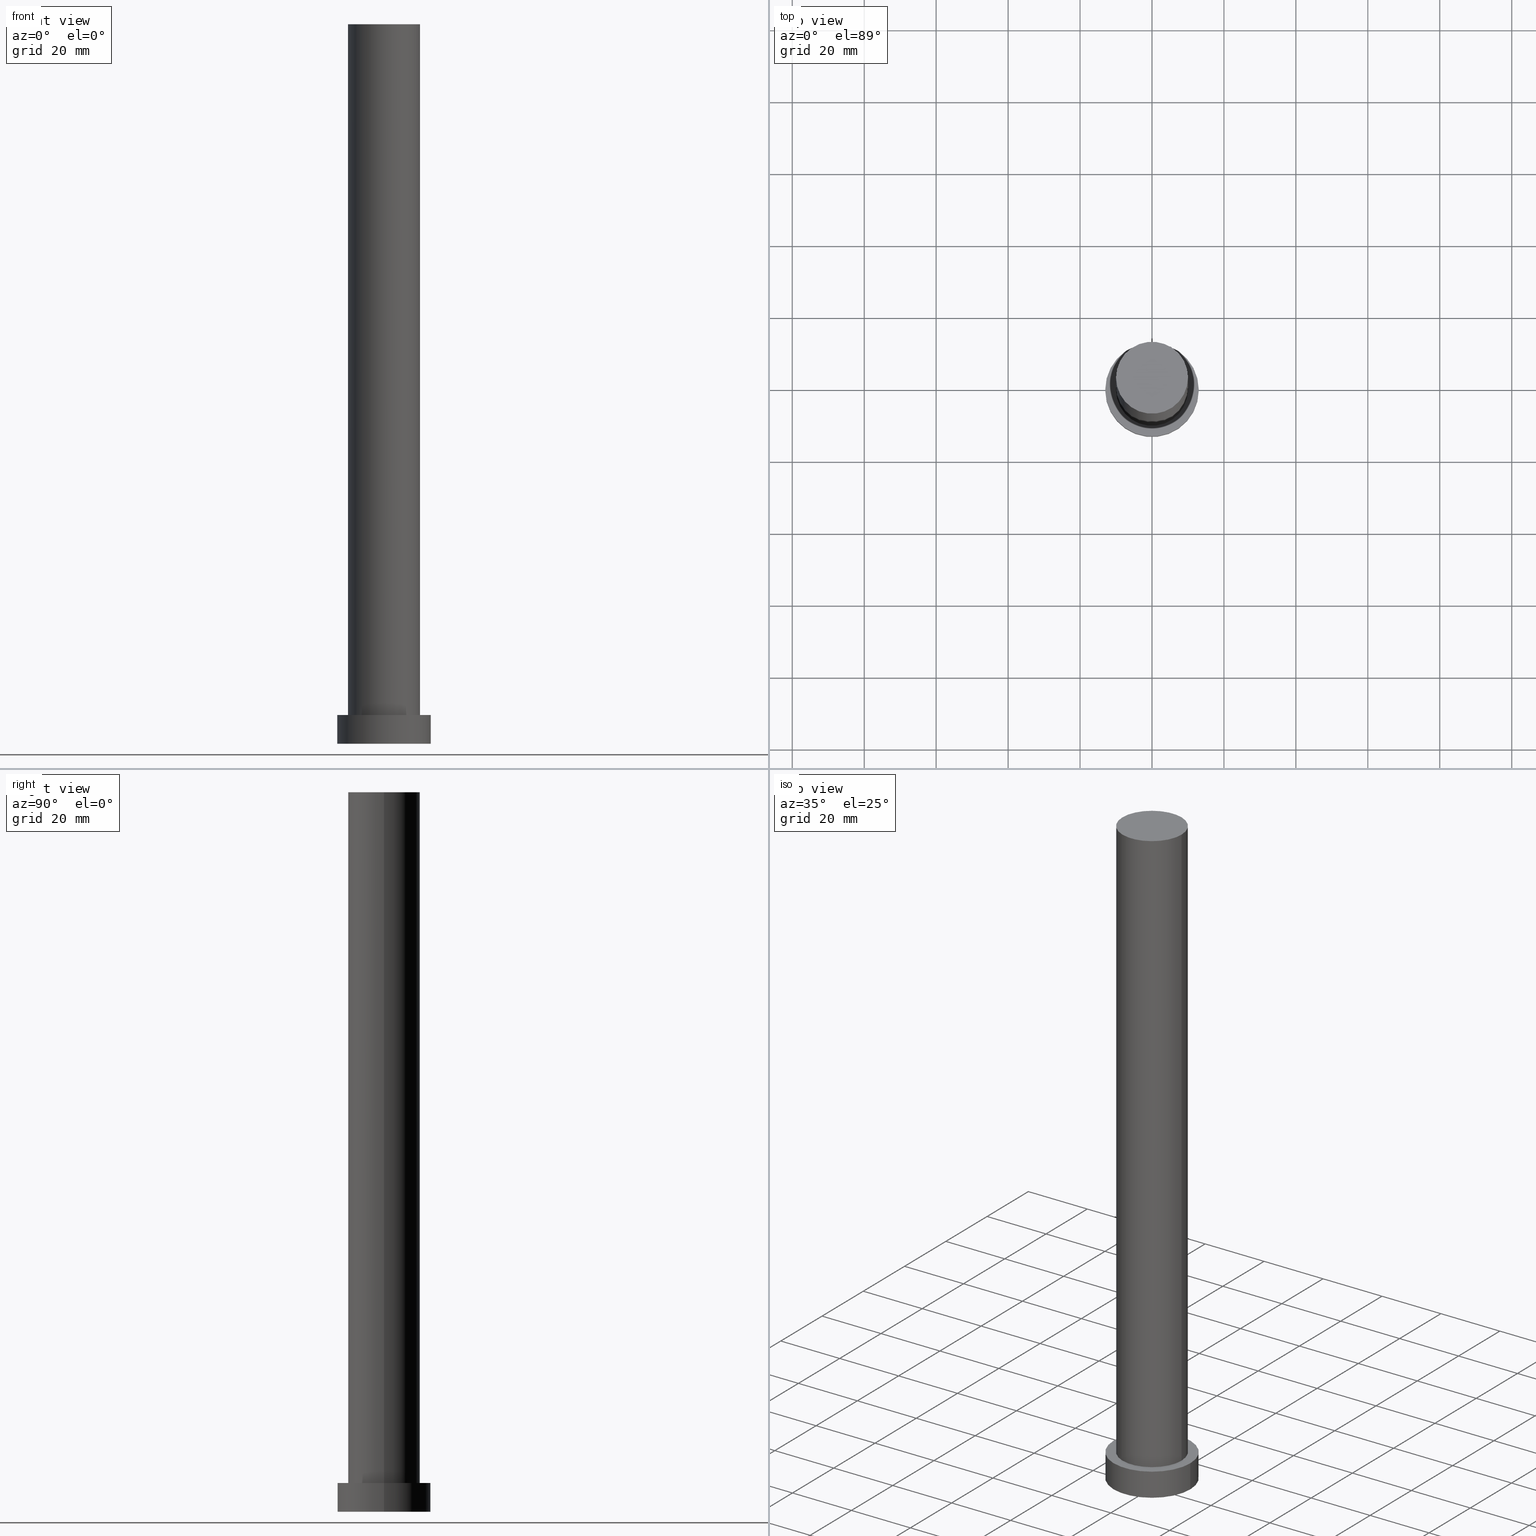
[diagram: canonical four-view strip — front | top / right | iso, engineering-drawing reading convention]
A machine part, canonical four-view strip (front | top / right | iso — engineering-drawing reading convention). The complete STEP part file that produces these views, byte-faithful:
ISO-10303-21;
HEADER;
FILE_DESCRIPTION (( 'STEP AP203' ),
    '1' );
FILE_NAME ('c17b.STEP',
    '2023-02-13T07:54:18',
    ( '' ),
    ( '' ),
    'SwSTEP 2.0',
    'SolidWorks 2019',
    '' );
FILE_SCHEMA (( 'CONFIG_CONTROL_DESIGN' ));
ENDSEC;

DATA;
#1 = CARTESIAN_POINT ( 'NONE',  ( 13.00000000000000178, 1.592040838891559293E-15, 8.000000000000000000 ) ) ;
#2 = DIRECTION ( 'NONE',  ( -0.000000000000000000, -0.000000000000000000, -1.000000000000000000 ) ) ;
#3 = DIRECTION ( 'NONE',  ( 1.000000000000000000, 0.000000000000000000, 0.000000000000000000 ) ) ;
#4 = DATE_AND_TIME ( #172, #122 ) ;
#5 = EDGE_CURVE ( 'NONE', #30, #114, #225, .T. ) ;
#6 = APPROVAL ( #205, 'NEUR�EN�' ) ;
#7 = ORIENTED_EDGE ( 'NONE', *, *, #24, .T. ) ;
#8 = CARTESIAN_POINT ( 'NONE',  ( 0.000000000000000000, 0.000000000000000000, 8.000000000000000000 ) ) ;
#9 = EDGE_LOOP ( 'NONE', ( #173, #188 ) ) ;
#10 = AXIS2_PLACEMENT_3D ( 'NONE', #233, #16, #197 ) ;
#11 = ORIENTED_EDGE ( 'NONE', *, *, #84, .T. ) ;
#12 = CC_DESIGN_PERSON_AND_ORGANIZATION_ASSIGNMENT ( #152, #224, ( #175 ) ) ;
#13 = EDGE_LOOP ( 'NONE', ( #72, #11, #66, #145 ) ) ;
#14 = FACE_OUTER_BOUND ( 'NONE', #212, .T. ) ;
#15 = CC_DESIGN_PERSON_AND_ORGANIZATION_ASSIGNMENT ( #47, #21, ( #91 ) ) ;
#16 = DIRECTION ( 'NONE',  ( 0.000000000000000000, 0.000000000000000000, 1.000000000000000000 ) ) ;
#17 = CARTESIAN_POINT ( 'NONE',  ( 10.00000000000000000, 1.224646799147353256E-15, 200.0000000000000000 ) ) ;
#18 = AXIS2_PLACEMENT_3D ( 'NONE', #164, #159, #101 ) ;
#19 = APPROVAL_DATE_TIME ( #62, #6 ) ;
#20 = AXIS2_PLACEMENT_3D ( 'NONE', #121, #118, #178 ) ;
#21 = PERSON_AND_ORGANIZATION_ROLE ( 'classification_officer' ) ;
#22 = DATE_TIME_ROLE ( 'creation_date' ) ;
#23 = PRODUCT ( 'c17b', 'c17b', '', ( #237 ) ) ;
#24 = EDGE_CURVE ( 'NONE', #246, #193, #50, .T. ) ;
#25 = AXIS2_PLACEMENT_3D ( 'NONE', #96, #79, #216 ) ;
#26 = DIRECTION ( 'NONE',  ( 1.000000000000000000, 0.000000000000000000, -0.000000000000000000 ) ) ;
#27 = ORIENTED_EDGE ( 'NONE', *, *, #29, .F. ) ;
#28 = ORIENTED_EDGE ( 'NONE', *, *, #29, .T. ) ;
#29 = EDGE_CURVE ( 'NONE', #111, #114, #130, .T. ) ;
#30 = VERTEX_POINT ( 'NONE', #176 ) ;
#31 = VECTOR ( 'NONE', #92, 1000.000000000000000 ) ;
#32 = AXIS2_PLACEMENT_3D ( 'NONE', #33, #137, #228 ) ;
#33 = CARTESIAN_POINT ( 'NONE',  ( 0.000000000000000000, 0.000000000000000000, 0.000000000000000000 ) ) ;
#34 = DIRECTION ( 'NONE',  ( -0.000000000000000000, -0.000000000000000000, -1.000000000000000000 ) ) ;
#35 = EDGE_CURVE ( 'NONE', #111, #250, #126, .T. ) ;
#36 = CARTESIAN_POINT ( 'NONE',  ( 0.000000000000000000, 0.000000000000000000, 200.0000000000000000 ) ) ;
#37 = FACE_OUTER_BOUND ( 'NONE', #157, .T. ) ;
#38 = CIRCLE ( 'NONE', #248, 13.00000000000000178 ) ;
#39 = DATE_AND_TIME ( #129, #58 ) ;
#40 = CALENDAR_DATE ( 2023, 13, 2 ) ;
#41 = CC_DESIGN_PERSON_AND_ORGANIZATION_ASSIGNMENT ( #83, #124, ( #251 ) ) ;
#42 = PERSON_AND_ORGANIZATION ( #115, #139 ) ;
#43 = UNCERTAINTY_MEASURE_WITH_UNIT (LENGTH_MEASURE( 1.000000000000000082E-05 ), #98, 'distance_accuracy_value', 'NONE');
#44 = CIRCLE ( 'NONE', #144, 10.00000000000000000 ) ;
#45 = CALENDAR_DATE ( 2023, 13, 2 ) ;
#46 = APPROVAL_PERSON_ORGANIZATION ( #68, #104, #103 ) ;
#47 = PERSON_AND_ORGANIZATION ( #115, #139 ) ;
#48 = CC_DESIGN_DATE_AND_TIME_ASSIGNMENT ( #206, #86, ( #91 ) ) ;
#49 = DIRECTION ( 'NONE',  ( 1.000000000000000000, 0.000000000000000000, 0.000000000000000000 ) ) ;
#50 = LINE ( 'NONE', #116, #31 ) ;
#51 = FACE_OUTER_BOUND ( 'NONE', #154, .T. ) ;
#52 = ADVANCED_FACE ( 'NONE', ( #51 ), #229, .F. ) ;
#53 = VERTEX_POINT ( 'NONE', #249 ) ;
#54 = ORIENTED_EDGE ( 'NONE', *, *, #35, .F. ) ;
#55 = CARTESIAN_POINT ( 'NONE',  ( -10.00000000000000000, 0.000000000000000000, 200.0000000000000000 ) ) ;
#56 = ADVANCED_FACE ( 'NONE', ( #153 ), #189, .T. ) ;
#57 = DIRECTION ( 'NONE',  ( -1.000000000000000000, 0.000000000000000000, 0.000000000000000000 ) ) ;
#58 = LOCAL_TIME ( 8, 54, 18.00000000000000000, #223 ) ;
#59 = CARTESIAN_POINT ( 'NONE',  ( 0.000000000000000000, 0.000000000000000000, 0.000000000000000000 ) ) ;
#60 = EDGE_CURVE ( 'NONE', #250, #111, #185, .T. ) ;
#61 = CYLINDRICAL_SURFACE ( 'NONE', #183, 10.00000000000000000 ) ;
#62 = DATE_AND_TIME ( #202, #238 ) ;
#63 = EDGE_LOOP ( 'NONE', ( #221, #231 ) ) ;
#64 = PERSON_AND_ORGANIZATION_ROLE ( 'design_owner' ) ;
#65 = APPLICATION_PROTOCOL_DEFINITION ( 'international standard', 'config_control_design', 1994, #94 ) ;
#66 = ORIENTED_EDGE ( 'NONE', *, *, #88, .T. ) ;
#67 = CC_DESIGN_APPROVAL ( #167, ( #175 ) ) ;
#68 = PERSON_AND_ORGANIZATION ( #115, #139 ) ;
#69 = VECTOR ( 'NONE', #132, 1000.000000000000000 ) ;
#70 = CARTESIAN_POINT ( 'NONE',  ( 0.000000000000000000, 0.000000000000000000, 0.000000000000000000 ) ) ;
#71 = ORIENTED_EDGE ( 'NONE', *, *, #5, .F. ) ;
#72 = ORIENTED_EDGE ( 'NONE', *, *, #100, .F. ) ;
#73 = ORIENTED_EDGE ( 'NONE', *, *, #75, .T. ) ;
#74 = EDGE_LOOP ( 'NONE', ( #155, #177 ) ) ;
#75 = EDGE_CURVE ( 'NONE', #250, #30, #109, .T. ) ;
#76 = DIRECTION ( 'NONE',  ( -0.000000000000000000, -0.000000000000000000, -1.000000000000000000 ) ) ;
#77 = DIRECTION ( 'NONE',  ( 0.000000000000000000, 0.000000000000000000, 1.000000000000000000 ) ) ;
#78 = CARTESIAN_POINT ( 'NONE',  ( -10.00000000000000000, 0.000000000000000000, 8.000000000000000000 ) ) ;
#79 = DIRECTION ( 'NONE',  ( -0.000000000000000000, -0.000000000000000000, -1.000000000000000000 ) ) ;
#80 = AXIS2_PLACEMENT_3D ( 'NONE', #70, #133, #208 ) ;
#81 = AXIS2_PLACEMENT_3D ( 'NONE', #8, #230, #210 ) ;
#82 = DIRECTION ( 'NONE',  ( 1.000000000000000000, 0.000000000000000000, 0.000000000000000000 ) ) ;
#83 = PERSON_AND_ORGANIZATION ( #115, #139 ) ;
#84 = EDGE_CURVE ( 'NONE', #53, #209, #160, .T. ) ;
#85 = COORDINATED_UNIVERSAL_TIME_OFFSET ( 1, 0, .AHEAD. ) ;
#86 = DATE_TIME_ROLE ( 'classification_date' ) ;
#87 = CARTESIAN_POINT ( 'NONE',  ( 0.000000000000000000, 0.000000000000000000, 0.000000000000000000 ) ) ;
#88 = EDGE_CURVE ( 'NONE', #209, #193, #151, .T. ) ;
#89 = ORIENTED_EDGE ( 'NONE', *, *, #234, .F. ) ;
#90 = ORIENTED_EDGE ( 'NONE', *, *, #5, .T. ) ;
#91 = SECURITY_CLASSIFICATION ( '', '', #203 ) ;
#92 = DIRECTION ( 'NONE',  ( -0.000000000000000000, -0.000000000000000000, -1.000000000000000000 ) ) ;
#93 = ORIENTED_EDGE ( 'NONE', *, *, #75, .F. ) ;
#94 = APPLICATION_CONTEXT ( 'configuration controlled 3d designs of mechanical parts and assemblies' ) ;
#95 = ORIENTED_EDGE ( 'NONE', *, *, #148, .F. ) ;
#96 = CARTESIAN_POINT ( 'NONE',  ( 0.000000000000000000, 0.000000000000000000, 8.000000000000000000 ) ) ;
#97 = CLOSED_SHELL ( 'NONE', ( #161, #108, #136, #255, #52, #170, #56 ) ) ;
#98 =( LENGTH_UNIT ( ) NAMED_UNIT ( * ) SI_UNIT ( .MILLI., .METRE. ) );
#99 = FACE_OUTER_BOUND ( 'NONE', #74, .T. ) ;
#100 = EDGE_CURVE ( 'NONE', #53, #246, #113, .T. ) ;
#101 = DIRECTION ( 'NONE',  ( 1.000000000000000000, 0.000000000000000000, 0.000000000000000000 ) ) ;
#102 = CC_DESIGN_APPROVAL ( #104, ( #91 ) ) ;
#103 = APPROVAL_ROLE ( '' ) ;
#104 = APPROVAL ( #168, 'NEUR�EN�' ) ;
#105 = DESIGN_CONTEXT ( 'detailed design', #94, 'design' ) ;
#106 = PERSON_AND_ORGANIZATION_ROLE ( 'design_supplier' ) ;
#107 = PERSON_AND_ORGANIZATION ( #115, #139 ) ;
#108 = ADVANCED_FACE ( 'NONE', ( #37 ), #181, .T. ) ;
#109 = LINE ( 'NONE', #117, #200 ) ;
#110 = CC_DESIGN_DATE_AND_TIME_ASSIGNMENT ( #4, #22, ( #251 ) ) ;
#111 = VERTEX_POINT ( 'NONE', #184 ) ;
#112 = CARTESIAN_POINT ( 'NONE',  ( -13.00000000000000178, 0.000000000000000000, 8.000000000000000000 ) ) ;
#113 = CIRCLE ( 'NONE', #20, 10.00000000000000000 ) ;
#114 = VERTEX_POINT ( 'NONE', #198 ) ;
#115 = PERSON ( 'NEUR�EN�', 'NEUR�EN�', 'NEUR�EN�', ('NEUR�EN�'), ('NEUR�EN�'), ('NEUR�EN�') ) ;
#116 = CARTESIAN_POINT ( 'NONE',  ( -10.00000000000000000, 0.000000000000000000, 200.0000000000000000 ) ) ;
#117 = CARTESIAN_POINT ( 'NONE',  ( 13.00000000000000178, 1.592040838891559293E-15, 8.000000000000000000 ) ) ;
#118 = DIRECTION ( 'NONE',  ( 0.000000000000000000, 0.000000000000000000, 1.000000000000000000 ) ) ;
#119 = CARTESIAN_POINT ( 'NONE',  ( 0.000000000000000000, 0.000000000000000000, 200.0000000000000000 ) ) ;
#120 = CYLINDRICAL_SURFACE ( 'NONE', #215, 13.00000000000000178 ) ;
#121 = CARTESIAN_POINT ( 'NONE',  ( 0.000000000000000000, 0.000000000000000000, 200.0000000000000000 ) ) ;
#122 = LOCAL_TIME ( 8, 54, 18.00000000000000000, #169 ) ;
#123 = APPROVAL_STATUS ( 'not_yet_approved' ) ;
#124 = PERSON_AND_ORGANIZATION_ROLE ( 'creator' ) ;
#125 = PERSON_AND_ORGANIZATION ( #115, #139 ) ;
#126 = CIRCLE ( 'NONE', #158, 13.00000000000000178 ) ;
#127 = CC_DESIGN_APPROVAL ( #6, ( #251 ) ) ;
#128 = SHAPE_DEFINITION_REPRESENTATION ( #146, #195 ) ;
#129 = CALENDAR_DATE ( 2023, 13, 2 ) ;
#130 = LINE ( 'NONE', #112, #69 ) ;
#131 =( GEOMETRIC_REPRESENTATION_CONTEXT ( 3 ) GLOBAL_UNCERTAINTY_ASSIGNED_CONTEXT ( ( #43 ) ) GLOBAL_UNIT_ASSIGNED_CONTEXT ( ( #98, #140, #199 ) ) REPRESENTATION_CONTEXT ( 'NONE', 'WORKASPACE' ) );
#132 = DIRECTION ( 'NONE',  ( -0.000000000000000000, -0.000000000000000000, -1.000000000000000000 ) ) ;
#133 = DIRECTION ( 'NONE',  ( 0.000000000000000000, 0.000000000000000000, 1.000000000000000000 ) ) ;
#134 = ORIENTED_EDGE ( 'NONE', *, *, #84, .F. ) ;
#135 = CC_DESIGN_SECURITY_CLASSIFICATION ( #91, ( #175 ) ) ;
#136 = ADVANCED_FACE ( 'NONE', ( #14 ), #120, .T. ) ;
#137 = DIRECTION ( 'NONE',  ( 0.000000000000000000, 0.000000000000000000, 1.000000000000000000 ) ) ;
#138 = CYLINDRICAL_SURFACE ( 'NONE', #179, 10.00000000000000000 ) ;
#139 = ORGANIZATION ( 'NEUR�EN�', 'NEUR�EN�', '' ) ;
#140 =( NAMED_UNIT ( * ) PLANE_ANGLE_UNIT ( ) SI_UNIT ( $, .RADIAN. ) );
#141 = CARTESIAN_POINT ( 'NONE',  ( 0.000000000000000000, 0.000000000000000000, 8.000000000000000000 ) ) ;
#142 = DIRECTION ( 'NONE',  ( 0.000000000000000000, 0.000000000000000000, 1.000000000000000000 ) ) ;
#143 = DATE_AND_TIME ( #45, #211 ) ;
#144 = AXIS2_PLACEMENT_3D ( 'NONE', #36, #213, #82 ) ;
#145 = ORIENTED_EDGE ( 'NONE', *, *, #24, .F. ) ;
#146 = PRODUCT_DEFINITION_SHAPE ( 'NONE', 'NONE',  #251 ) ;
#147 = PERSON_AND_ORGANIZATION ( #115, #139 ) ;
#148 = EDGE_CURVE ( 'NONE', #246, #53, #44, .T. ) ;
#149 = APPROVAL_ROLE ( '' ) ;
#150 = AXIS2_PLACEMENT_3D ( 'NONE', #141, #77, #218 ) ;
#151 = CIRCLE ( 'NONE', #18, 10.00000000000000000 ) ;
#152 = PERSON_AND_ORGANIZATION ( #115, #139 ) ;
#153 = FACE_OUTER_BOUND ( 'NONE', #63, .T. ) ;
#154 = EDGE_LOOP ( 'NONE', ( #89, #71 ) ) ;
#155 = ORIENTED_EDGE ( 'NONE', *, *, #35, .T. ) ;
#156 = CARTESIAN_POINT ( 'NONE',  ( 0.000000000000000000, 0.000000000000000000, 200.0000000000000000 ) ) ;
#157 = EDGE_LOOP ( 'NONE', ( #174, #73, #90, #27 ) ) ;
#158 = AXIS2_PLACEMENT_3D ( 'NONE', #192, #244, #49 ) ;
#159 = DIRECTION ( 'NONE',  ( 0.000000000000000000, 0.000000000000000000, 1.000000000000000000 ) ) ;
#160 = LINE ( 'NONE', #17, #243 ) ;
#161 = ADVANCED_FACE ( 'NONE', ( #166 ), #138, .T. ) ;
#162 = PLANE ( 'NONE',  #150 ) ;
#163 = AXIS2_PLACEMENT_3D ( 'NONE', #156, #207, #26 ) ;
#164 = CARTESIAN_POINT ( 'NONE',  ( 0.000000000000000000, 0.000000000000000000, 8.000000000000000000 ) ) ;
#165 = APPROVAL_PERSON_ORGANIZATION ( #147, #167, #201 ) ;
#166 = FACE_OUTER_BOUND ( 'NONE', #13, .T. ) ;
#167 = APPROVAL ( #123, 'NEUR�EN�' ) ;
#168 = APPROVAL_STATUS ( 'not_yet_approved' ) ;
#169 = COORDINATED_UNIVERSAL_TIME_OFFSET ( 1, 0, .AHEAD. ) ;
#170 = ADVANCED_FACE ( 'NONE', ( #254 ), #61, .T. ) ;
#171 = COORDINATED_UNIVERSAL_TIME_OFFSET ( 1, 0, .AHEAD. ) ;
#172 = CALENDAR_DATE ( 2023, 13, 2 ) ;
#173 = ORIENTED_EDGE ( 'NONE', *, *, #217, .F. ) ;
#174 = ORIENTED_EDGE ( 'NONE', *, *, #60, .F. ) ;
#175 = PRODUCT_DEFINITION_FORMATION_WITH_SPECIFIED_SOURCE ( 'LIBOVOLN�', '', #23, .NOT_KNOWN. ) ;
#176 = CARTESIAN_POINT ( 'NONE',  ( 13.00000000000000178, 1.592040838891559293E-15, 0.000000000000000000 ) ) ;
#177 = ORIENTED_EDGE ( 'NONE', *, *, #60, .T. ) ;
#178 = DIRECTION ( 'NONE',  ( 1.000000000000000000, 0.000000000000000000, 0.000000000000000000 ) ) ;
#179 = AXIS2_PLACEMENT_3D ( 'NONE', #182, #180, #236 ) ;
#180 = DIRECTION ( 'NONE',  ( -0.000000000000000000, -0.000000000000000000, -1.000000000000000000 ) ) ;
#181 = CYLINDRICAL_SURFACE ( 'NONE', #25, 13.00000000000000178 ) ;
#182 = CARTESIAN_POINT ( 'NONE',  ( 0.000000000000000000, 0.000000000000000000, 200.0000000000000000 ) ) ;
#183 = AXIS2_PLACEMENT_3D ( 'NONE', #119, #34, #57 ) ;
#184 = CARTESIAN_POINT ( 'NONE',  ( -13.00000000000000178, 0.000000000000000000, 8.000000000000000000 ) ) ;
#185 = CIRCLE ( 'NONE', #81, 13.00000000000000178 ) ;
#186 = APPLICATION_PROTOCOL_DEFINITION ( 'international standard', 'config_control_design', 1994, #242 ) ;
#187 = COORDINATED_UNIVERSAL_TIME_OFFSET ( 1, 0, .AHEAD. ) ;
#188 = ORIENTED_EDGE ( 'NONE', *, *, #88, .F. ) ;
#189 = PLANE ( 'NONE',  #163 ) ;
#190 = ORIENTED_EDGE ( 'NONE', *, *, #217, .T. ) ;
#191 = LOCAL_TIME ( 8, 54, 18.00000000000000000, #187 ) ;
#192 = CARTESIAN_POINT ( 'NONE',  ( 0.000000000000000000, 0.000000000000000000, 8.000000000000000000 ) ) ;
#193 = VERTEX_POINT ( 'NONE', #78 ) ;
#194 = PRODUCT_RELATED_PRODUCT_CATEGORY ( 'detail', '', ( #23 ) ) ;
#195 = ADVANCED_BREP_SHAPE_REPRESENTATION ( 'c17b', ( #227, #204 ), #131 ) ;
#196 = DIRECTION ( 'NONE',  ( -1.000000000000000000, 0.000000000000000000, 0.000000000000000000 ) ) ;
#197 = DIRECTION ( 'NONE',  ( 1.000000000000000000, 0.000000000000000000, 0.000000000000000000 ) ) ;
#198 = CARTESIAN_POINT ( 'NONE',  ( -13.00000000000000178, 0.000000000000000000, 0.000000000000000000 ) ) ;
#199 =( NAMED_UNIT ( * ) SI_UNIT ( $, .STERADIAN. ) SOLID_ANGLE_UNIT ( ) );
#200 = VECTOR ( 'NONE', #76, 1000.000000000000000 ) ;
#201 = APPROVAL_ROLE ( '' ) ;
#202 = CALENDAR_DATE ( 2023, 13, 2 ) ;
#203 = SECURITY_CLASSIFICATION_LEVEL ( 'unclassified' ) ;
#204 = AXIS2_PLACEMENT_3D ( 'NONE', #87, #239, #3 ) ;
#205 = APPROVAL_STATUS ( 'not_yet_approved' ) ;
#206 = DATE_AND_TIME ( #40, #191 ) ;
#207 = DIRECTION ( 'NONE',  ( 0.000000000000000000, 0.000000000000000000, 1.000000000000000000 ) ) ;
#208 = DIRECTION ( 'NONE',  ( 1.000000000000000000, 0.000000000000000000, -0.000000000000000000 ) ) ;
#209 = VERTEX_POINT ( 'NONE', #253 ) ;
#210 = DIRECTION ( 'NONE',  ( 1.000000000000000000, 0.000000000000000000, 0.000000000000000000 ) ) ;
#211 = LOCAL_TIME ( 8, 54, 18.00000000000000000, #171 ) ;
#212 = EDGE_LOOP ( 'NONE', ( #93, #54, #28, #247 ) ) ;
#213 = DIRECTION ( 'NONE',  ( 0.000000000000000000, 0.000000000000000000, 1.000000000000000000 ) ) ;
#214 = DIRECTION ( 'NONE',  ( -0.000000000000000000, -0.000000000000000000, -1.000000000000000000 ) ) ;
#215 = AXIS2_PLACEMENT_3D ( 'NONE', #232, #2, #196 ) ;
#216 = DIRECTION ( 'NONE',  ( -1.000000000000000000, 0.000000000000000000, 0.000000000000000000 ) ) ;
#217 = EDGE_CURVE ( 'NONE', #193, #209, #220, .T. ) ;
#218 = DIRECTION ( 'NONE',  ( 1.000000000000000000, 0.000000000000000000, -0.000000000000000000 ) ) ;
#219 = DIRECTION ( 'NONE',  ( 1.000000000000000000, 0.000000000000000000, 0.000000000000000000 ) ) ;
#220 = CIRCLE ( 'NONE', #10, 10.00000000000000000 ) ;
#221 = ORIENTED_EDGE ( 'NONE', *, *, #148, .T. ) ;
#222 = APPROVAL_DATE_TIME ( #39, #167 ) ;
#223 = COORDINATED_UNIVERSAL_TIME_OFFSET ( 1, 0, .AHEAD. ) ;
#224 = PERSON_AND_ORGANIZATION_ROLE ( 'creator' ) ;
#225 = CIRCLE ( 'NONE', #32, 13.00000000000000178 ) ;
#226 = EDGE_LOOP ( 'NONE', ( #134, #95, #7, #190 ) ) ;
#227 = MANIFOLD_SOLID_BREP ( 'P�idat vysunut�m3', #97 ) ;
#228 = DIRECTION ( 'NONE',  ( 1.000000000000000000, 0.000000000000000000, 0.000000000000000000 ) ) ;
#229 = PLANE ( 'NONE',  #80 ) ;
#230 = DIRECTION ( 'NONE',  ( 0.000000000000000000, 0.000000000000000000, 1.000000000000000000 ) ) ;
#231 = ORIENTED_EDGE ( 'NONE', *, *, #100, .T. ) ;
#232 = CARTESIAN_POINT ( 'NONE',  ( 0.000000000000000000, 0.000000000000000000, 8.000000000000000000 ) ) ;
#233 = CARTESIAN_POINT ( 'NONE',  ( 0.000000000000000000, 0.000000000000000000, 8.000000000000000000 ) ) ;
#234 = EDGE_CURVE ( 'NONE', #114, #30, #38, .T. ) ;
#235 = FACE_BOUND ( 'NONE', #9, .T. ) ;
#236 = DIRECTION ( 'NONE',  ( -1.000000000000000000, 0.000000000000000000, 0.000000000000000000 ) ) ;
#237 = MECHANICAL_CONTEXT ( 'NONE', #242, 'mechanical' ) ;
#238 = LOCAL_TIME ( 8, 54, 18.00000000000000000, #85 ) ;
#239 = DIRECTION ( 'NONE',  ( 0.000000000000000000, 0.000000000000000000, 1.000000000000000000 ) ) ;
#240 = APPROVAL_DATE_TIME ( #143, #104 ) ;
#241 = CC_DESIGN_PERSON_AND_ORGANIZATION_ASSIGNMENT ( #125, #106, ( #175 ) ) ;
#242 = APPLICATION_CONTEXT ( 'configuration controlled 3d designs of mechanical parts and assemblies' ) ;
#243 = VECTOR ( 'NONE', #214, 1000.000000000000000 ) ;
#244 = DIRECTION ( 'NONE',  ( 0.000000000000000000, 0.000000000000000000, 1.000000000000000000 ) ) ;
#245 = CC_DESIGN_PERSON_AND_ORGANIZATION_ASSIGNMENT ( #42, #64, ( #23 ) ) ;
#246 = VERTEX_POINT ( 'NONE', #55 ) ;
#247 = ORIENTED_EDGE ( 'NONE', *, *, #234, .T. ) ;
#248 = AXIS2_PLACEMENT_3D ( 'NONE', #59, #142, #219 ) ;
#249 = CARTESIAN_POINT ( 'NONE',  ( 10.00000000000000000, 1.224646799147353256E-15, 200.0000000000000000 ) ) ;
#250 = VERTEX_POINT ( 'NONE', #1 ) ;
#251 = PRODUCT_DEFINITION ( 'NEZN�M�', '', #175, #105 ) ;
#252 = APPROVAL_PERSON_ORGANIZATION ( #107, #6, #149 ) ;
#253 = CARTESIAN_POINT ( 'NONE',  ( 10.00000000000000000, 1.224646799147353256E-15, 8.000000000000000000 ) ) ;
#254 = FACE_OUTER_BOUND ( 'NONE', #226, .T. ) ;
#255 = ADVANCED_FACE ( 'NONE', ( #235, #99 ), #162, .T. ) ;
ENDSEC;
END-ISO-10303-21;
